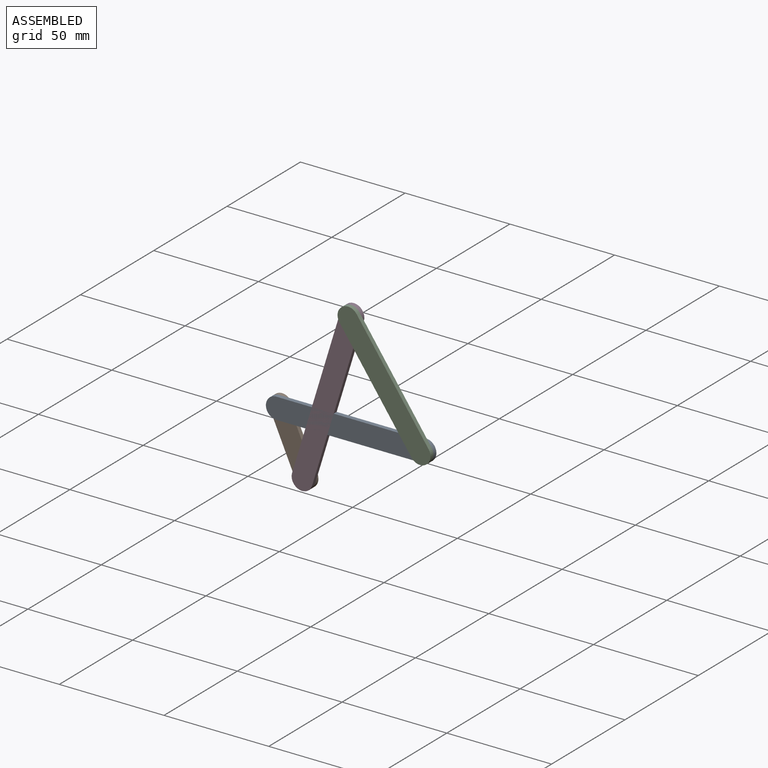
[diagram: assembled view]
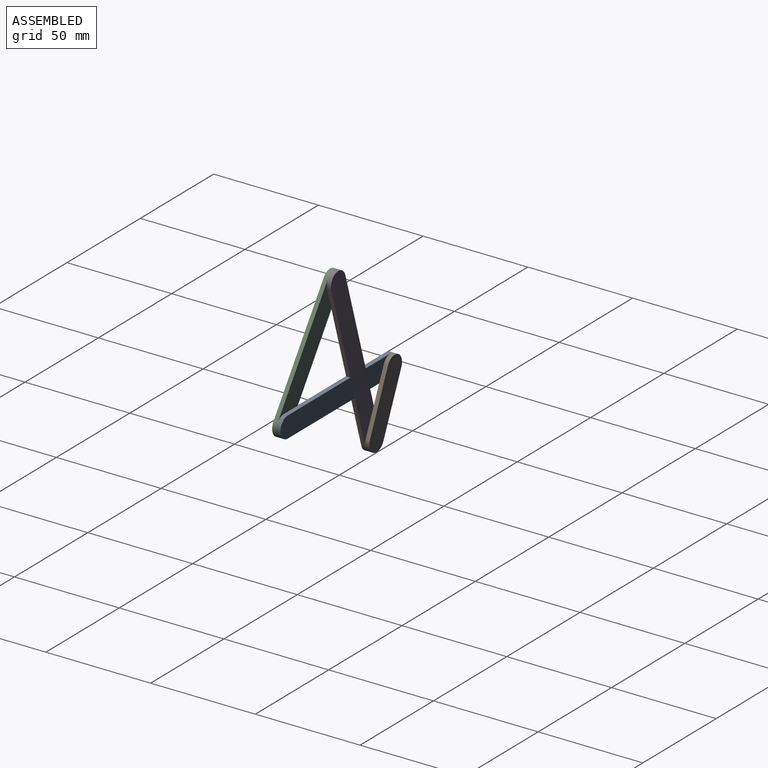
[diagram: assembled view, second angle]
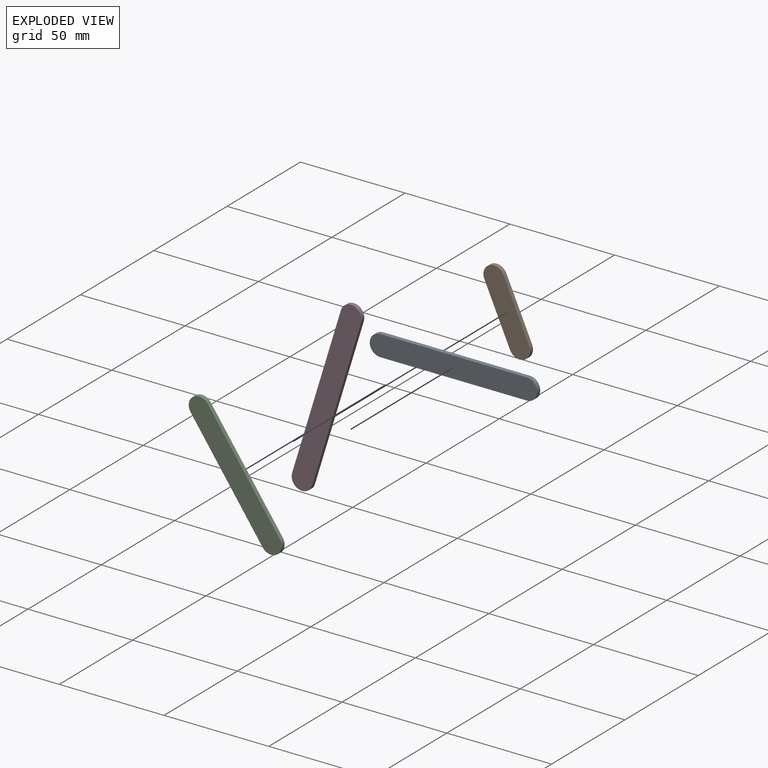
[diagram: exploded view]
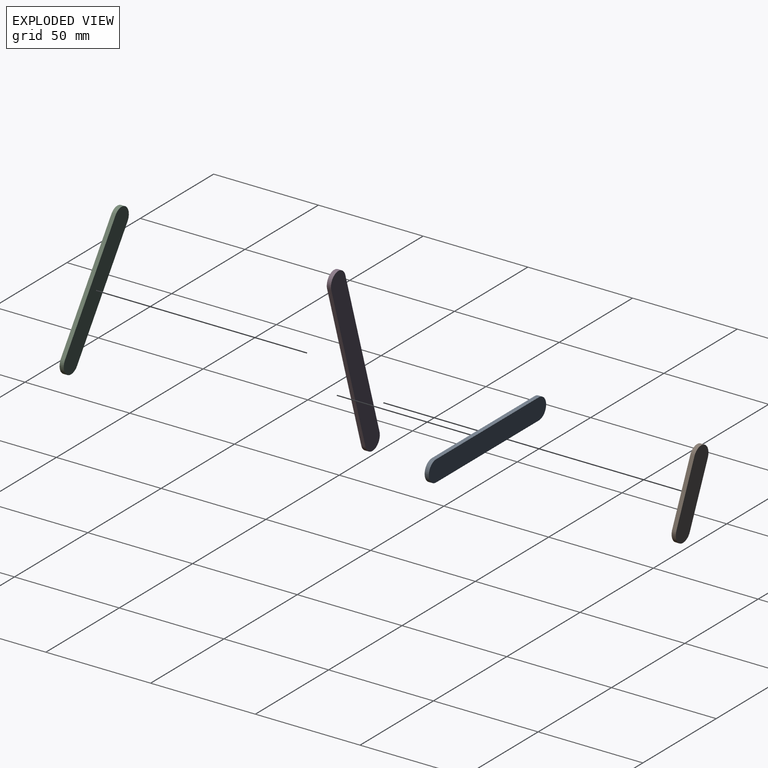
[diagram: exploded view, second angle]
ASSEMBLY  parts=4 mates=4
PART A: 6 faces, bbox 80x2x10 mm
  f0: cylinder r=5mm len=10mm, axis (0,1,0), area 31.4mm2, adj f1,f3,f4,f5
  f1: plane 70x2mm, normal (0,0,1), area 140mm2, adj f0,f2,f4,f5
  f2: cylinder r=5mm len=10mm, axis (0,1,0), area 31.4mm2, adj f1,f3,f4,f5
  f3: plane 70x2mm, normal (0,0,-1), area 140mm2, adj f0,f2,f4,f5
  f4: plane 80x10mm, normal (0,-1,0), area 778.5mm2, adj f0,f1,f2,f3
  f5: plane 80x10mm, normal (0,1,0), area 778.5mm2, adj f0,f1,f2,f3
PART B: 6 faces, bbox 10x2x40 mm
  f0: cylinder r=5mm len=10mm, axis (0,-1,0), area 31.4mm2, adj f1,f3,f4,f5
  f1: plane 30x2mm, normal (-1,0,0), area 60mm2, adj f0,f2,f4,f5
  f2: cylinder r=5mm len=10mm, axis (0,-1,0), area 31.4mm2, adj f1,f3,f4,f5
  f3: plane 30x2mm, normal (1,0,0), area 60mm2, adj f0,f2,f4,f5
  f4: plane 40x10mm, normal (0,1,0), area 378.5mm2, adj f0,f1,f2,f3
  f5: plane 40x10mm, normal (0,-1,0), area 378.5mm2, adj f0,f1,f2,f3
PART C: 6 faces, bbox 14.2x2x69.9 mm
  f0: cylinder r=5mm len=9.99mm, axis (0,1,0), area 31.4mm2, adj f1,f3,f4,f5
  f1: plane 59.85x4.22mm, normal (1,0,-0.07), area 120mm2, adj f0,f2,f4,f5
  f2: cylinder r=5mm len=9.99mm, axis (0,1,0), area 31.4mm2, adj f1,f3,f4,f5
  f3: plane 59.85x4.22mm, normal (-1,0,0.07), area 120mm2, adj f0,f2,f4,f5
  f4: plane 69.85x14.22mm, normal (0,-1,0), area 678.5mm2, adj f0,f1,f2,f3
  f5: plane 69.85x14.22mm, normal (0,1,0), area 678.5mm2, adj f0,f1,f2,f3
PART D: 6 faces, bbox 84.2x2x39.9 mm
  f0: cylinder r=5mm len=9.64mm, axis (0,1,0), area 31.4mm2, adj f1,f3,f4,f5
  f1: plane 74.22x29.85mm, normal (0.37,0,-0.93), area 160mm2, adj f0,f2,f4,f5
  f2: cylinder r=5mm len=9.64mm, axis (0,1,0), area 31.4mm2, adj f1,f3,f4,f5
  f3: plane 74.22x29.85mm, normal (-0.37,0,0.93), area 160mm2, adj f0,f2,f4,f5
  f4: plane 84.22x39.85mm, normal (0,-1,0), area 878.5mm2, adj f0,f1,f2,f3
  f5: plane 84.22x39.85mm, normal (0,1,0), area 878.5mm2, adj f0,f1,f2,f3
PLACE A at identity fixed
PLACE B rot(axis=(0,1,0),155.8deg) t=(-66.93,0,-14.34)mm
PLACE C rot(axis=(0,-1,0),39deg) t=(7.81,0,-22.03)mm
PLACE D rot(axis=(0,-1,0),51.1deg) t=(22.61,0,-18.93)mm
MATE revolute B.f0 <-> A.f2  axis (0,-1,0) through (-35,0,0)mm
MATE revolute A.f0 <-> C.f0  axis (0,-1,0) through (35,-2,0)mm
MATE revolute B.f2 <-> D.f0  axis (0,-1,0) through (-22.71,0,-27.37)mm
MATE revolute C.f2 <-> D.f2  axis (0,1,0) through (0.6,-2,49.16)mm
